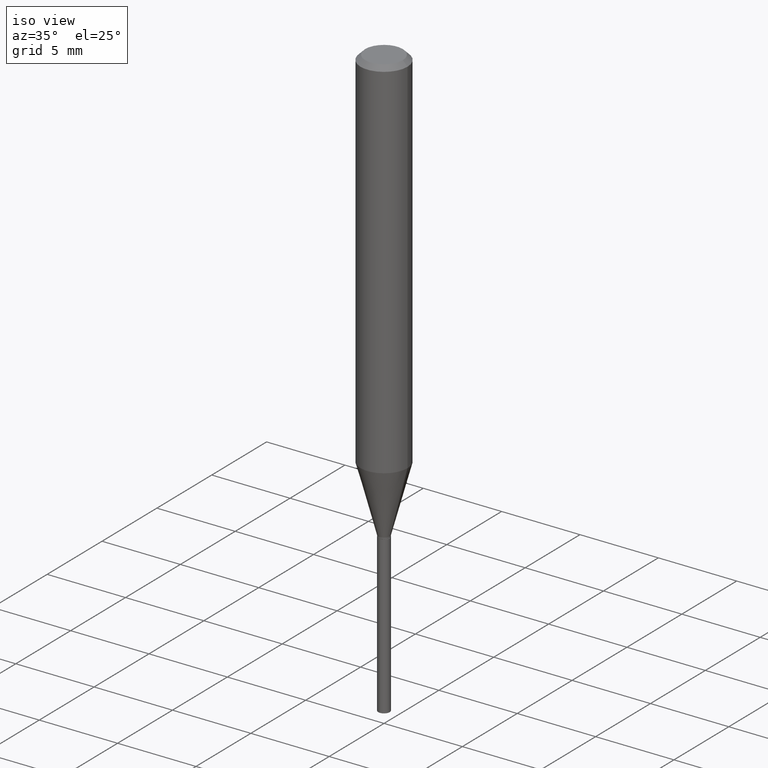
[diagram: clean part render]
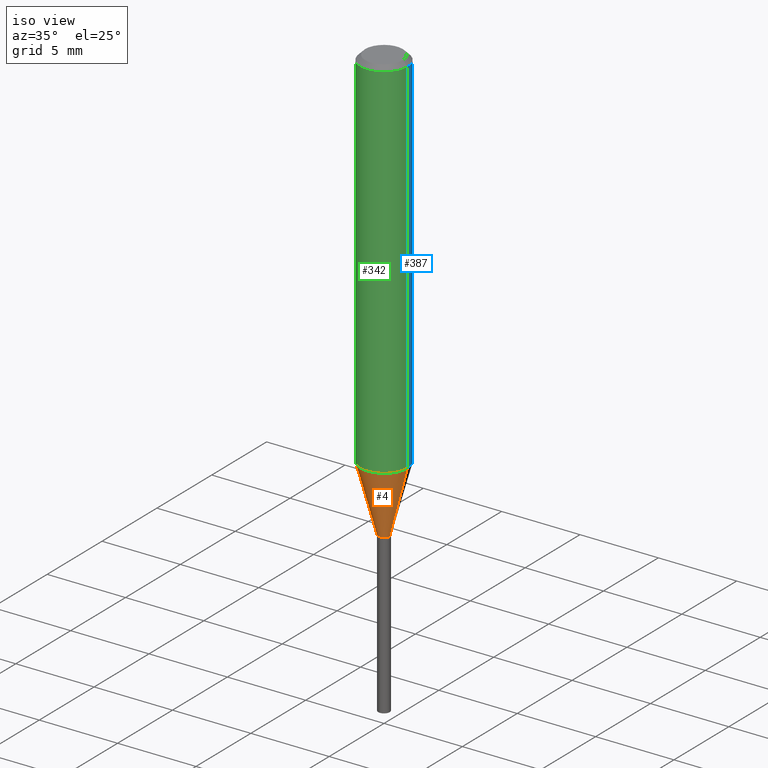
[diagram: same view with three faces highlighted in distinct colors, each labeled with its STEP entity id]
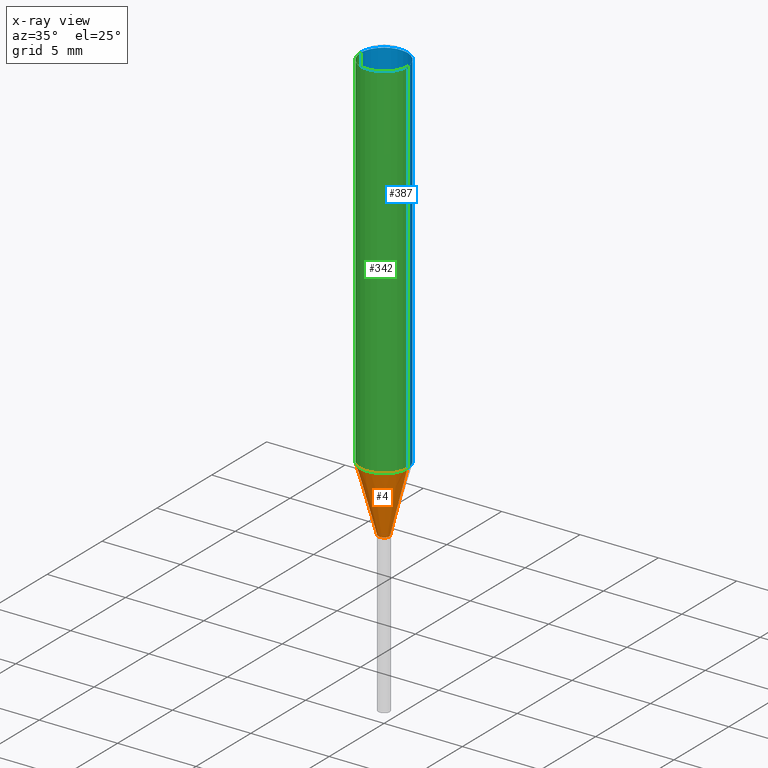
[diagram: x-ray of the same camera — body ghosted, the three highlighted faces saturated]
A machine part, iso view with three faces highlighted in distinct colors.
The next image is the same camera in x-ray (body ghosted, the three faces saturated) — at least one of them is partly hidden behind the body in this view.
Their STEP definitions:

[orange] entity #4 — the highlighted conical surface has half-angle 15 deg.
#2 = DIRECTION ( 'NONE',  ( 0.2588190451025213501, 1.565188264969621968E-15, 0.9659258262890682012 ) ) ;
#4 = ADVANCED_FACE ( 'NONE', ( #254 ), #148, .T. ) ;
#11 = ORIENTED_EDGE ( 'NONE', *, *, #42, .F. ) ;
#31 = DIRECTION ( 'NONE',  ( 1.000000000000000000, -6.982962677686268288E-15, 0.000000000000000000 ) ) ;
#33 = DIRECTION ( 'NONE',  ( 1.000000000000000000, -6.982962677686261977E-15, 0.000000000000000000 ) ) ;
#42 = EDGE_CURVE ( 'NONE', #313, #202, #272, .T. ) ;
#63 = CARTESIAN_POINT ( 'NONE',  ( 2.666050092503035832E-29, -3.806412955606797054E-15, -1.090200000000000058 ) ) ;
#79 = DIRECTION ( 'NONE',  ( -0.2588190451025213501, 5.211531920934551042E-15, 0.9659258262890682012 ) ) ;
#94 = EDGE_CURVE ( 'NONE', #124, #313, #477, .T. ) ;
#96 = EDGE_LOOP ( 'NONE', ( #170, #281, #395, #11 ) ) ;
#102 = VECTOR ( 'NONE', #2, 39.37007874015747433 ) ;
#106 = CARTESIAN_POINT ( 'NONE',  ( 0.01434999999999999991, -3.906618470031595303E-15, -1.090200000000000058 ) ) ;
#108 = AXIS2_PLACEMENT_3D ( 'NONE', #142, #335, #339 ) ;
#112 = CARTESIAN_POINT ( 'NONE',  ( -0.01434999999999999991, -3.711083887569024576E-15, -1.090200000000000058 ) ) ;
#124 = VERTEX_POINT ( 'NONE', #112 ) ;
#125 = CARTESIAN_POINT ( 'NONE',  ( -0.01434999999999999991, -3.704450073025222863E-15, -1.090200000000000058 ) ) ;
#142 = CARTESIAN_POINT ( 'NONE',  ( 2.666050092503035832E-29, -3.806412955606797054E-15, -1.090200000000000058 ) ) ;
#148 = CONICAL_SURFACE ( 'NONE', #455, 0.01434999999999999991, 0.2617993877991500740 ) ;
#170 = ORIENTED_EDGE ( 'NONE', *, *, #94, .F. ) ;
#202 = VERTEX_POINT ( 'NONE', #264 ) ;
#208 = CARTESIAN_POINT ( 'NONE',  ( 0.01434999999999999991, -3.906618470031595303E-15, -1.090200000000000058 ) ) ;
#254 = FACE_OUTER_BOUND ( 'NONE', #96, .T. ) ;
#255 = EDGE_CURVE ( 'NONE', #391, #202, #296, .T. ) ;
#264 = CARTESIAN_POINT ( 'NONE',  ( 0.05905000000000011628, -3.636298658688389161E-15, -0.9233773289016712349 ) ) ;
#272 = CIRCLE ( 'NONE', #341, 0.05905000000000010241 ) ;
#281 = ORIENTED_EDGE ( 'NONE', *, *, #474, .T. ) ;
#296 = LINE ( 'NONE', #106, #102 ) ;
#313 = VERTEX_POINT ( 'NONE', #333 ) ;
#330 = CARTESIAN_POINT ( 'NONE',  ( 2.258090454167590086E-29, -3.223954712571014636E-15, -0.9233773289016712349 ) ) ;
#333 = CARTESIAN_POINT ( 'NONE',  ( -0.05905000000000011628, -2.804379227104674354E-15, -0.9233773289016712349 ) ) ;
#335 = DIRECTION ( 'NONE',  ( -2.445468806185136597E-29, 3.491481338843145583E-15, 1.000000000000000000 ) ) ;
#336 = DIRECTION ( 'NONE',  ( -2.445468806185136597E-29, 3.491481338843145583E-15, 1.000000000000000000 ) ) ;
#339 = DIRECTION ( 'NONE',  ( 1.000000000000000000, -6.982962677686261977E-15, 0.000000000000000000 ) ) ;
#341 = AXIS2_PLACEMENT_3D ( 'NONE', #330, #366, #31 ) ;
#354 = CIRCLE ( 'NONE', #108, 0.01434999999999999991 ) ;
#366 = DIRECTION ( 'NONE',  ( -2.445468806185136597E-29, 3.491481338843145583E-15, 1.000000000000000000 ) ) ;
#372 = VECTOR ( 'NONE', #79, 39.37007874015747433 ) ;
#391 = VERTEX_POINT ( 'NONE', #208 ) ;
#395 = ORIENTED_EDGE ( 'NONE', *, *, #255, .T. ) ;
#455 = AXIS2_PLACEMENT_3D ( 'NONE', #63, #336, #33 ) ;
#474 = EDGE_CURVE ( 'NONE', #124, #391, #354, .T. ) ;
#477 = LINE ( 'NONE', #125, #372 ) ;

[blue] entity #387 — the highlighted cylindrical surface (edge-blend (fillet) strip) has radius 1.4999 mm, axis along (-0, 0, 1).
#1 = EDGE_CURVE ( 'NONE', #202, #313, #130, .T. ) ;
#6 = EDGE_CURVE ( 'NONE', #313, #237, #451, .T. ) ;
#66 = CARTESIAN_POINT ( 'NONE',  ( 0.05904999999999999832, -4.535783407291118600E-16, -0.01181000000000007218 ) ) ;
#80 = DIRECTION ( 'NONE',  ( -2.445468806185136597E-29, 3.491481338843145583E-15, 1.000000000000000000 ) ) ;
#99 = CARTESIAN_POINT ( 'NONE',  ( -0.05905000000000005383, 4.195754854663395423E-16, -2.904631170795524694E-30 ) ) ;
#105 = ORIENTED_EDGE ( 'NONE', *, *, #109, .F. ) ;
#107 = EDGE_CURVE ( 'NONE', #172, #237, #233, .T. ) ;
#109 = EDGE_CURVE ( 'NONE', #202, #172, #111, .T. ) ;
#111 = LINE ( 'NONE', #460, #239 ) ;
#130 = CIRCLE ( 'NONE', #282, 0.05905000000000010241 ) ;
#138 = DIRECTION ( 'NONE',  ( 1.000000000000000000, -6.982962677686266711E-15, 4.876176775795935793E-29 ) ) ;
#154 = DIRECTION ( 'NONE',  ( -2.445468806185136597E-29, 3.491481338843145583E-15, 1.000000000000000000 ) ) ;
#160 = DIRECTION ( 'NONE',  ( 1.000000000000000000, -6.982962677686266711E-15, 0.000000000000000000 ) ) ;
#172 = VERTEX_POINT ( 'NONE', #66 ) ;
#196 = DIRECTION ( 'NONE',  ( -2.445468806185136877E-29, 3.491481338843145188E-15, 1.000000000000000000 ) ) ;
#201 = CARTESIAN_POINT ( 'NONE',  ( 2.888098660104664204E-31, -4.123439461173780263E-17, -0.01181000000000007218 ) ) ;
#202 = VERTEX_POINT ( 'NONE', #264 ) ;
#215 = CYLINDRICAL_SURFACE ( 'NONE', #346, 0.05905000000000005383 ) ;
#220 = FACE_OUTER_BOUND ( 'NONE', #350, .T. ) ;
#221 = DIRECTION ( 'NONE',  ( -2.445468806185136877E-29, 3.491481338843145188E-15, 1.000000000000000000 ) ) ;
#233 = CIRCLE ( 'NONE', #299, 0.05904999999999999832 ) ;
#237 = VERTEX_POINT ( 'NONE', #257 ) ;
#239 = VECTOR ( 'NONE', #196, 39.37007874015748143 ) ;
#253 = DIRECTION ( 'NONE',  ( -2.445468806185136597E-29, 3.491481338843145583E-15, 1.000000000000000000 ) ) ;
#257 = CARTESIAN_POINT ( 'NONE',  ( -0.05904999999999999832, -1.213019068125036295E-15, -0.01181000000000007218 ) ) ;
#264 = CARTESIAN_POINT ( 'NONE',  ( 0.05905000000000011628, -3.636298658688389161E-15, -0.9233773289016712349 ) ) ;
#282 = AXIS2_PLACEMENT_3D ( 'NONE', #430, #80, #400 ) ;
#299 = AXIS2_PLACEMENT_3D ( 'NONE', #201, #154, #160 ) ;
#313 = VERTEX_POINT ( 'NONE', #333 ) ;
#333 = CARTESIAN_POINT ( 'NONE',  ( -0.05905000000000011628, -2.804379227104674354E-15, -0.9233773289016712349 ) ) ;
#346 = AXIS2_PLACEMENT_3D ( 'NONE', #487, #253, #138 ) ;
#350 = EDGE_LOOP ( 'NONE', ( #386, #479, #389, #105 ) ) ;
#386 = ORIENTED_EDGE ( 'NONE', *, *, #1, .T. ) ;
#387 = ADVANCED_FACE ( 'NONE', ( #220 ), #215, .T. ) ;
#389 = ORIENTED_EDGE ( 'NONE', *, *, #107, .F. ) ;
#400 = DIRECTION ( 'NONE',  ( 1.000000000000000000, -6.982962677686268288E-15, 0.000000000000000000 ) ) ;
#430 = CARTESIAN_POINT ( 'NONE',  ( 2.258090454167590086E-29, -3.223954712571014636E-15, -0.9233773289016712349 ) ) ;
#451 = LINE ( 'NONE', #99, #471 ) ;
#460 = CARTESIAN_POINT ( 'NONE',  ( 0.05905000000000005383, -4.123439461173744271E-16, 2.879382386107502672E-30 ) ) ;
#471 = VECTOR ( 'NONE', #221, 39.37007874015748143 ) ;
#479 = ORIENTED_EDGE ( 'NONE', *, *, #6, .T. ) ;
#487 = CARTESIAN_POINT ( 'NONE',  ( 0.000000000000000000, 0.000000000000000000, 0.000000000000000000 ) ) ;

[green] entity #342 — the highlighted cylindrical surface (edge-blend (fillet) strip) has radius 1.4999 mm, axis along (-0, 0, 1).
#6 = EDGE_CURVE ( 'NONE', #313, #237, #451, .T. ) ;
#29 = EDGE_LOOP ( 'NONE', ( #167, #349, #82, #277 ) ) ;
#31 = DIRECTION ( 'NONE',  ( 1.000000000000000000, -6.982962677686268288E-15, 0.000000000000000000 ) ) ;
#42 = EDGE_CURVE ( 'NONE', #313, #202, #272, .T. ) ;
#66 = CARTESIAN_POINT ( 'NONE',  ( 0.05904999999999999832, -4.535783407291118600E-16, -0.01181000000000007218 ) ) ;
#82 = ORIENTED_EDGE ( 'NONE', *, *, #109, .T. ) ;
#99 = CARTESIAN_POINT ( 'NONE',  ( -0.05905000000000005383, 4.195754854663395423E-16, -2.904631170795524694E-30 ) ) ;
#109 = EDGE_CURVE ( 'NONE', #202, #172, #111, .T. ) ;
#111 = LINE ( 'NONE', #460, #239 ) ;
#115 = DIRECTION ( 'NONE',  ( -2.445468806185136597E-29, 3.491481338843145583E-15, 1.000000000000000000 ) ) ;
#141 = EDGE_CURVE ( 'NONE', #237, #172, #305, .T. ) ;
#167 = ORIENTED_EDGE ( 'NONE', *, *, #6, .F. ) ;
#172 = VERTEX_POINT ( 'NONE', #66 ) ;
#187 = DIRECTION ( 'NONE',  ( 1.000000000000000000, -6.982962677686266711E-15, 4.876176775795935793E-29 ) ) ;
#196 = DIRECTION ( 'NONE',  ( -2.445468806185136877E-29, 3.491481338843145188E-15, 1.000000000000000000 ) ) ;
#202 = VERTEX_POINT ( 'NONE', #264 ) ;
#221 = DIRECTION ( 'NONE',  ( -2.445468806185136877E-29, 3.491481338843145188E-15, 1.000000000000000000 ) ) ;
#237 = VERTEX_POINT ( 'NONE', #257 ) ;
#239 = VECTOR ( 'NONE', #196, 39.37007874015748143 ) ;
#249 = CYLINDRICAL_SURFACE ( 'NONE', #428, 0.05905000000000005383 ) ;
#257 = CARTESIAN_POINT ( 'NONE',  ( -0.05904999999999999832, -1.213019068125036295E-15, -0.01181000000000007218 ) ) ;
#264 = CARTESIAN_POINT ( 'NONE',  ( 0.05905000000000011628, -3.636298658688389161E-15, -0.9233773289016712349 ) ) ;
#272 = CIRCLE ( 'NONE', #341, 0.05905000000000010241 ) ;
#277 = ORIENTED_EDGE ( 'NONE', *, *, #141, .F. ) ;
#305 = CIRCLE ( 'NONE', #337, 0.05904999999999999832 ) ;
#306 = CARTESIAN_POINT ( 'NONE',  ( 2.888098660104664204E-31, -4.123439461173780263E-17, -0.01181000000000007218 ) ) ;
#312 = DIRECTION ( 'NONE',  ( 1.000000000000000000, -6.982962677686266711E-15, 0.000000000000000000 ) ) ;
#313 = VERTEX_POINT ( 'NONE', #333 ) ;
#330 = CARTESIAN_POINT ( 'NONE',  ( 2.258090454167590086E-29, -3.223954712571014636E-15, -0.9233773289016712349 ) ) ;
#333 = CARTESIAN_POINT ( 'NONE',  ( -0.05905000000000011628, -2.804379227104674354E-15, -0.9233773289016712349 ) ) ;
#337 = AXIS2_PLACEMENT_3D ( 'NONE', #306, #115, #312 ) ;
#341 = AXIS2_PLACEMENT_3D ( 'NONE', #330, #366, #31 ) ;
#342 = ADVANCED_FACE ( 'NONE', ( #442 ), #249, .T. ) ;
#349 = ORIENTED_EDGE ( 'NONE', *, *, #42, .T. ) ;
#366 = DIRECTION ( 'NONE',  ( -2.445468806185136597E-29, 3.491481338843145583E-15, 1.000000000000000000 ) ) ;
#394 = DIRECTION ( 'NONE',  ( -2.445468806185136597E-29, 3.491481338843145583E-15, 1.000000000000000000 ) ) ;
#428 = AXIS2_PLACEMENT_3D ( 'NONE', #480, #394, #187 ) ;
#442 = FACE_OUTER_BOUND ( 'NONE', #29, .T. ) ;
#451 = LINE ( 'NONE', #99, #471 ) ;
#460 = CARTESIAN_POINT ( 'NONE',  ( 0.05905000000000005383, -4.123439461173744271E-16, 2.879382386107502672E-30 ) ) ;
#471 = VECTOR ( 'NONE', #221, 39.37007874015748143 ) ;
#480 = CARTESIAN_POINT ( 'NONE',  ( 0.000000000000000000, 0.000000000000000000, 0.000000000000000000 ) ) ;